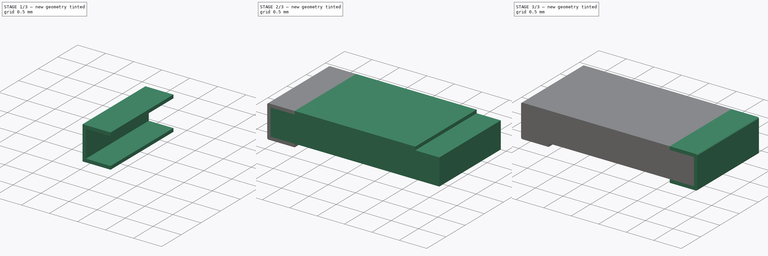
[diagram: build sequence overview — one tinted view per stage of 3, left to right]
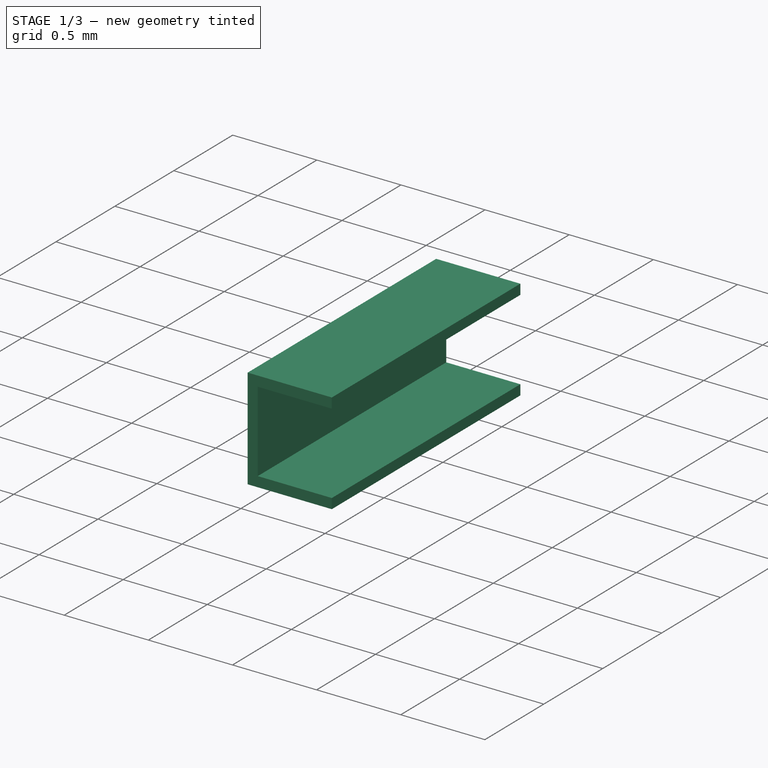
[diagram: stage 1 of 3 — iso view after this stage's code; geometry added in this stage tinted green]
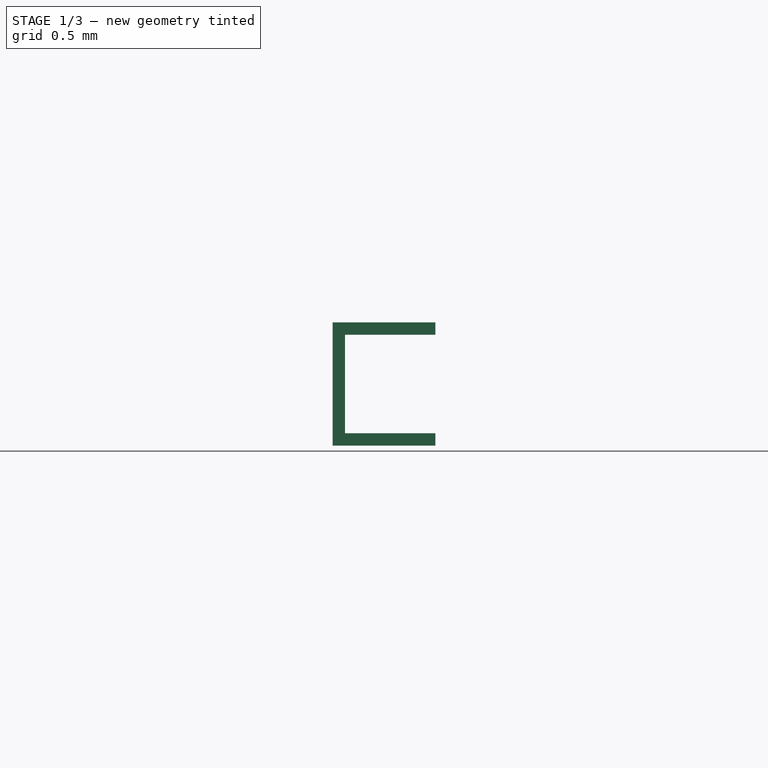
[diagram: stage 1 of 3 — front view after this stage's code; geometry added in this stage tinted green]
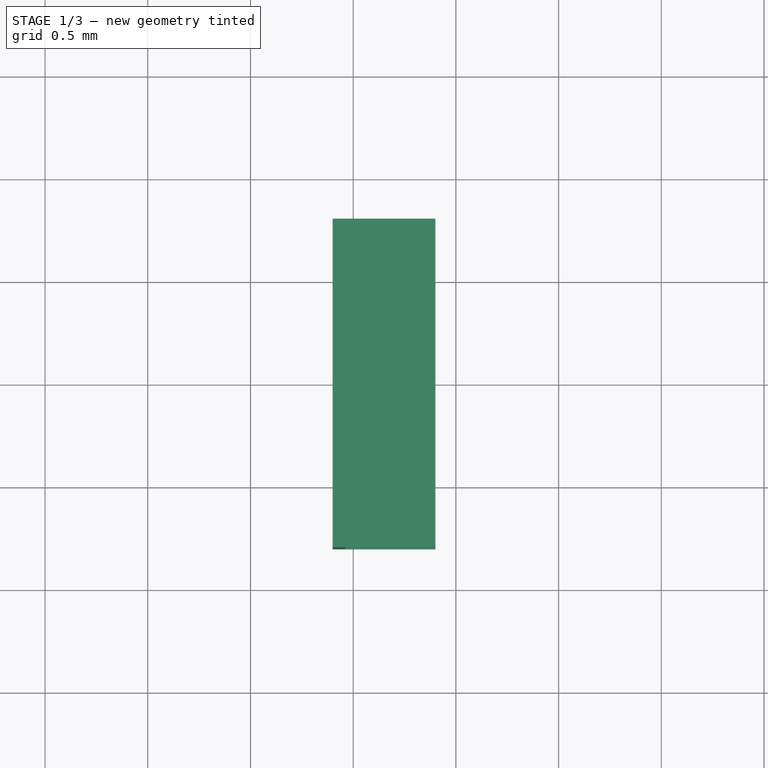
[diagram: stage 1 of 3 — top view after this stage's code; geometry added in this stage tinted green]
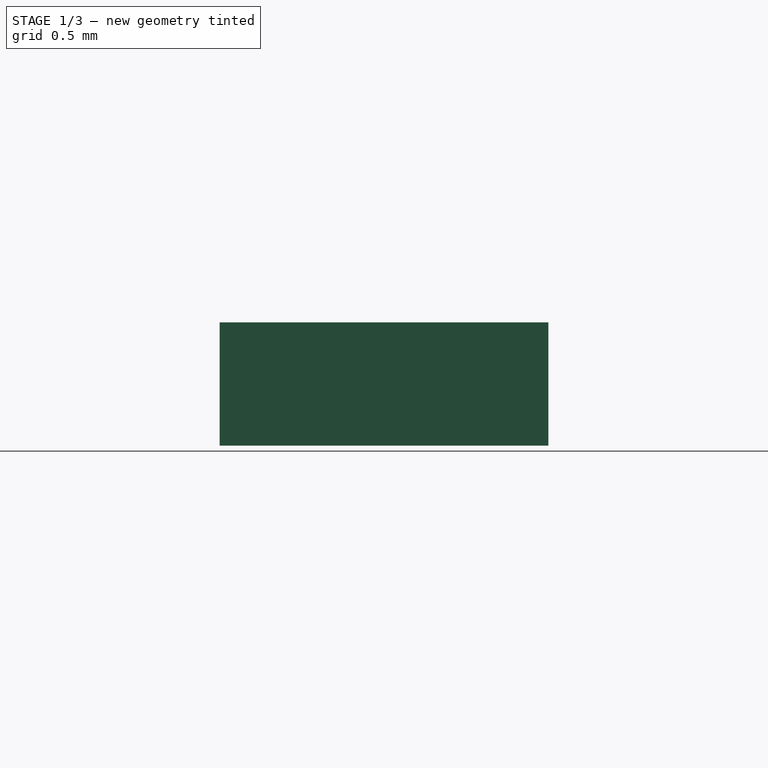
[diagram: stage 1 of 3 — right view after this stage's code; geometry added in this stage tinted green]
FCSTD DOCUMENT  (FreeCAD 0.19R17069 (Git))
Label: Panasonic ERJ
License: All rights reserved
LicenseURL: http://en.wikipedia.org/wiki/All_rights_reserved
objects: PartDesign::Body×5, Sketcher::SketchObject×4, PartDesign::Pad×3, Spreadsheet::Sheet×1, PartDesign::Mirrored×1, PartDesign::Fillet×1, PartDesign::FeatureBase×1, Part::MultiFuse×1
note: 19 computed .brp shape members not serialized (recipe doc carries the construction recipe); baked Part::Feature solids carry a one-line shape summary decoded from their .brp

FEATURE [Sketcher::SketchObject] Sketch
  MapMode = 5
  Placement = pos=(0,0,0) rot=(1,0,0;1.5708rad)
  Support = -> [XZ_Plane]
  expr: Constraints[11] = Datasheet.dim_a
  expr: Constraints[8] = Datasheet.dim_b
  expr: Constraints[5] = Datasheet.dim_t
  expr: Constraints[2] = Datasheet.dim_L / 2
  sketch-geometry (4):
    g0: LineSegment StartX=0 StartY=0 StartZ=0 EndX=-1.6 EndY=0 EndZ=0
    g1: LineSegment StartX=-1.6 StartY=0 StartZ=0 EndX=-1.6 EndY=0.6 EndZ=0
    g2: LineSegment StartX=0 StartY=0 StartZ=0 EndX=-1.1 EndY=0 EndZ=0
    g3: LineSegment StartX=-1.6 StartY=0.6 StartZ=0 EndX=-1.1 EndY=0.6 EndZ=0
  constraints (12):
    c: Coincident(g0,g-1)
    c: Horizontal(g0)
    c: DistanceX(g0,g0) = 1.6
    c: Coincident(g1,g0)
    c: Vertical(g1)
    c: DistanceY(g1,g1) = 0.6
    c: Coincident(g2,g-1)
    c: PointOnObject(g2,g0)
    c: DistanceX(g0,g2) = 0.5
    c: Coincident(g3,g1)
    c: Horizontal(g3)
    c: DistanceX(g3,g3) = 0.5
FEATURE [PartDesign::Body] Body  label="MasterBody"
  Group = -> [Sketch]
  Origin = -> Origin
FEATURE [Spreadsheet::Sheet] Spreadsheet  label="Datasheet"
  cells = A2=dim_L; C2(dim_L)==3.2mm; A3=dim_W; C3(dim_W)==1.6mm; A4=dim_a; C4(dim_a)==0.5mm; A5=dim_b; C5(dim_b)==0.5mm; A6=dim_t; C6(dim_t)==0.6mm; C7==0.6mm; A8=dim_tf; C8(dim_tf)==0.1 * C6; A9=dim_af; C9(dim_af)==0.25 * C4
FEATURE [Sketcher::SketchObject] Sketch001
  MapMode = 5
  Placement = pos=(0,0,0) rot=(1,0,0;1.5708rad)
  Support = -> [XZ_Plane001]
  expr: Constraints[34] = Datasheet.dim_tf
  expr: Constraints[11] = Sketch.Constraints[11]
  expr: Constraints[8] = Sketch.Constraints[8]
  expr: Constraints[5] = Sketch.Constraints[5]
  expr: Constraints[2] = Sketch.Constraints[2]
  sketch-geometry (13):
    g0: LineSegment [constr] StartX=0 StartY=0 StartZ=0 EndX=-1.6 EndY=0 EndZ=0
    g1: LineSegment [constr] StartX=-1.6 StartY=0 StartZ=0 EndX=-1.6 EndY=0.6 EndZ=0
    g2: LineSegment [constr] StartX=0 StartY=0 StartZ=0 EndX=-1.1 EndY=0 EndZ=0
    g3: LineSegment [constr] StartX=-1.6 StartY=0.6 StartZ=0 EndX=-1.1 EndY=0.6 EndZ=0
    g4: LineSegment StartX=-1.1 StartY=0 StartZ=0 EndX=-1.6 EndY=0 EndZ=0
    g5: LineSegment StartX=-1.6 StartY=0 StartZ=0 EndX=-1.6 EndY=0.6 EndZ=0
    g6: LineSegment StartX=-1.6 StartY=0.6 StartZ=0 EndX=-1.1 EndY=0.6 EndZ=0
    g7: LineSegment StartX=-1.1 StartY=0.6 StartZ=0 EndX=-1.1 EndY=0.54 EndZ=0
    g8: LineSegment StartX=-1.1 StartY=0.54 StartZ=0 EndX=-1.54 EndY=0.54 EndZ=0
    g9: LineSegment StartX=-1.54 StartY=0.54 StartZ=0 EndX=-1.54 EndY=0.06 EndZ=0
    g10: LineSegment StartX=-1.54 StartY=0.06 StartZ=0 EndX=-1.1 EndY=0.06 EndZ=0
    g11: LineSegment StartX=-1.1 StartY=0.06 StartZ=0 EndX=-1.1 EndY=0 EndZ=0
    g12: LineSegment [constr] StartX=-1.54 StartY=0.54 StartZ=0 EndX=-1.6 EndY=0.54 EndZ=0
  constraints (35):
    c: Coincident(g0,g-1)
    c: Horizontal(g0)
    c: DistanceX(g0,g0) = 1.6
    c: Coincident(g1,g0)
    c: Vertical(g1)
    c: DistanceY(g1,g1) = 0.6
    c: Coincident(g2,g-1)
    c: PointOnObject(g2,g0)
    c: DistanceX(g0,g2) = 0.5
    c: Coincident(g3,g1)
    c: Horizontal(g3)
    c: DistanceX(g3,g3) = 0.5
    c: Coincident(g4,g2)
    c: Coincident(g4,g0)
    c: Coincident(g5,g4)
    c: Coincident(g5,g1)
    c: Coincident(g6,g5)
    c: Coincident(g6,g3)
    c: Coincident(g7,g6)
    c: Coincident(g8,g7)
    c: Horizontal(g8)
    c: Coincident(g9,g8)
    c: Vertical(g9)
    c: Coincident(g10,g9)
    c: Horizontal(g10)
    c: Coincident(g11,g10)
    c: Coincident(g11,g4)
    c: Vertical(g11)
    c: Vertical(g7)
    c: Equal(g11,g7)
    c: Coincident(g12,g8)
    c: PointOnObject(g12,g5)
    c: Horizontal(g12)
    c: Equal(g12,g7)
    c: DistanceY(g7,g7) = 0.06
FEATURE [PartDesign::Pad] Pad
  Length = 1.6
  Length2 = 100
  Midplane = true
  Placement = pos=(0,0,0) rot=(1,0,0;1.5708rad)
  Profile = -> Sketch001
  Type = 0
  expr: Length = Datasheet.dim_W
FEATURE [PartDesign::Body] Body003  label="Substrate"
  Group = -> [Sketch002,Pad001]
  Origin = -> Origin003
  Tip = -> Pad001
FEATURE [PartDesign::Mirrored] Mirrored
  BaseFeature = -> Pad
  MirrorPlane = -> XZ_Plane001
  Originals = -> [Pad]
  Placement = pos=(0,0,0) rot=(1,0,0;1.5708rad)
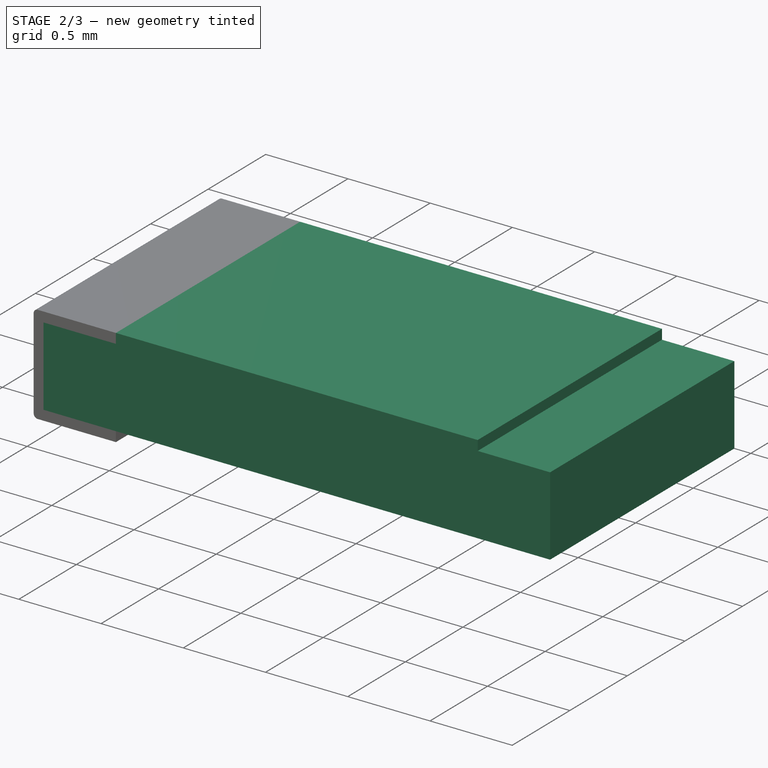
[diagram: stage 2 of 3 — iso view after this stage's code; geometry added in this stage tinted green]
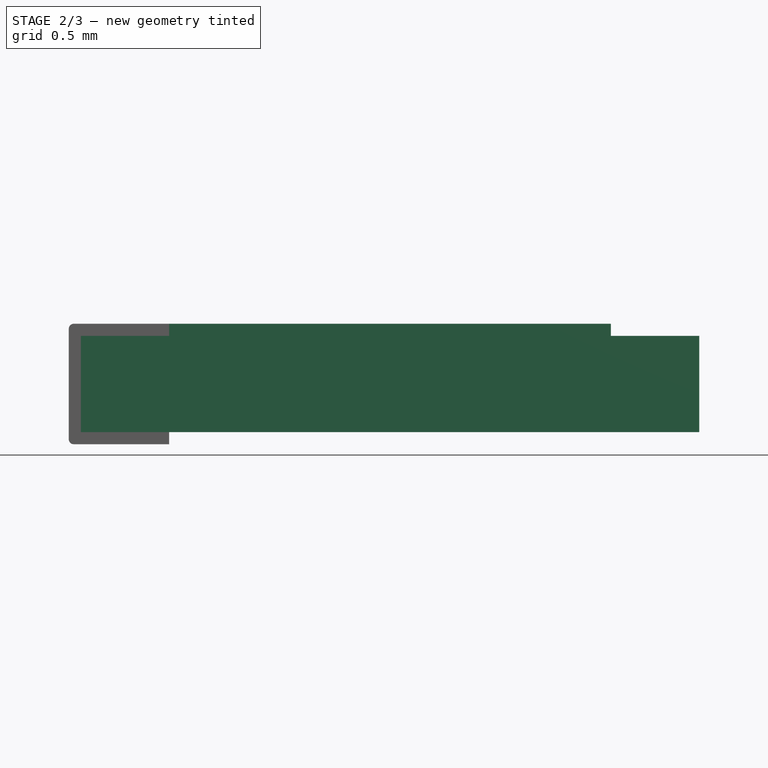
[diagram: stage 2 of 3 — front view after this stage's code; geometry added in this stage tinted green]
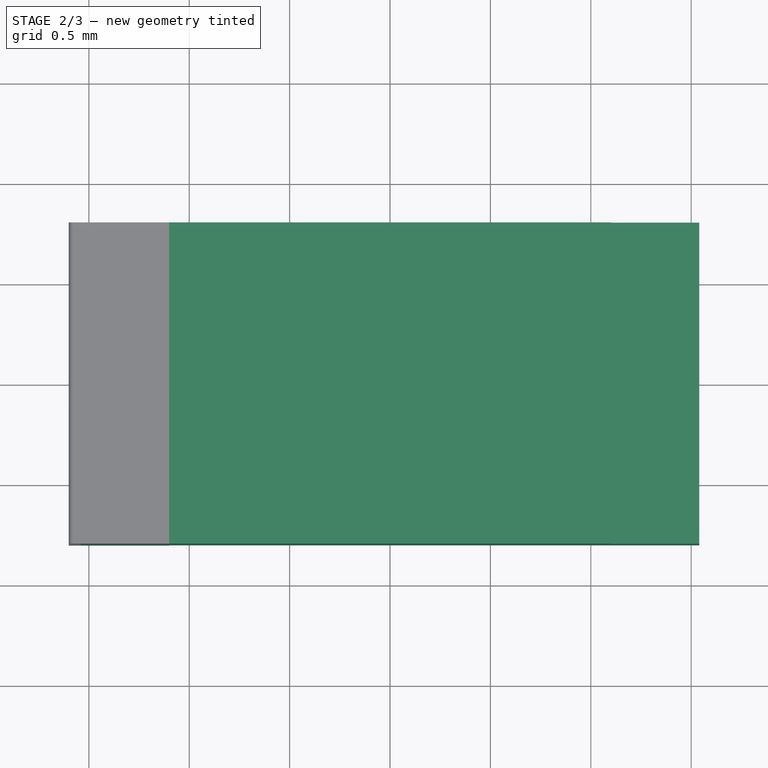
[diagram: stage 2 of 3 — top view after this stage's code; geometry added in this stage tinted green]
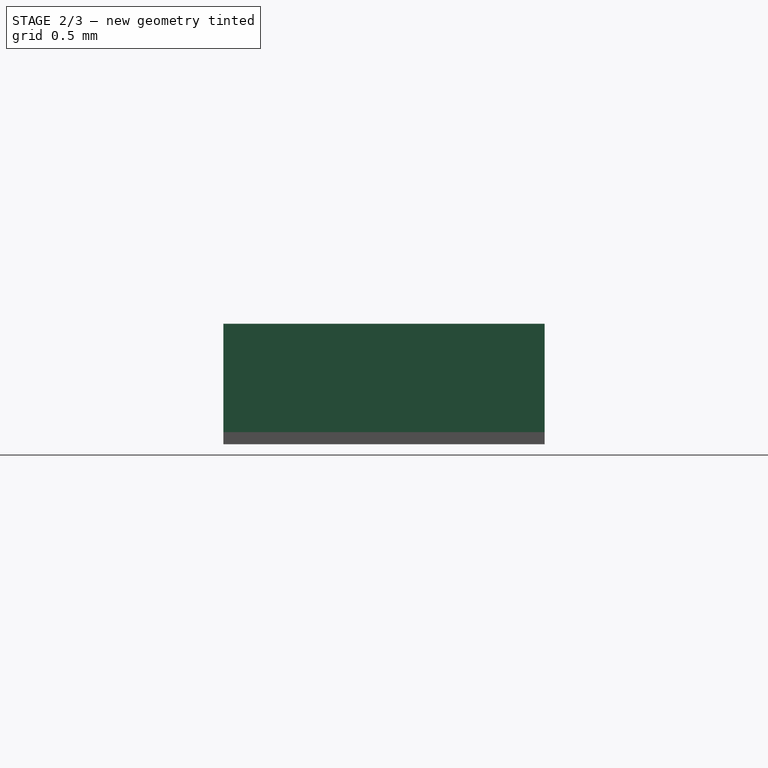
[diagram: stage 2 of 3 — right view after this stage's code; geometry added in this stage tinted green]
FEATURE [Sketcher::SketchObject] Sketch002
  MapMode = 5
  Placement = pos=(0,0,0) rot=(1,0,0;1.5708rad)
  Support = -> [XZ_Plane003]
  expr: Constraints[10] = Datasheet.dim_tf
  expr: Constraints[9] = Datasheet.dim_t - 2 * Datasheet.dim_tf
  expr: Constraints[8] = Datasheet.dim_L - 2 * Datasheet.dim_tf
  sketch-geometry (4):
    g0: LineSegment StartX=-1.54 StartY=0.06 StartZ=0 EndX=1.54 EndY=0.06 EndZ=0
    g1: LineSegment StartX=1.54 StartY=0.06 StartZ=0 EndX=1.54 EndY=0.54 EndZ=0
    g2: LineSegment StartX=1.54 StartY=0.54 StartZ=0 EndX=-1.54 EndY=0.54 EndZ=0
    g3: LineSegment StartX=-1.54 StartY=0.54 StartZ=0 EndX=-1.54 EndY=0.06 EndZ=0
  constraints (11):
    c: Coincident(g0,g1)
    c: Coincident(g1,g2)
    c: Coincident(g2,g3)
    c: Coincident(g3,g0)
    c: Horizontal(g0)
    c: Vertical(g1)
    c: Vertical(g3)
    c: Symmetric(g1,g2,g-2)
    c: DistanceX(g0,g0) = 3.08
    c: DistanceY(g0,g1) = 0.48
    c: DistanceY(g-1,g0) = 0.06
FEATURE [PartDesign::Pad] Pad001
  Length = 1.6
  Length2 = 100
  Midplane = true
  Placement = pos=(0,0,0) rot=(1,0,0;1.5708rad)
  Profile = -> Sketch002
  Type = 0
  expr: Length = Datasheet.dim_W
FEATURE [Sketcher::SketchObject] Sketch003
  AttachmentOffset = pos=(0,0,0.54) rot=(0,0,1;0rad)
  MapMode = 5
  Placement = pos=(0,0,0.54) rot=(0,0,1;0rad)
  Support = -> [XY_Plane004]
  expr: AttachmentOffset.Base.z = Datasheet.dim_t - Datasheet.dim_tf
  expr: Constraints[10] = Datasheet.dim_L - 2 * Datasheet.dim_a
  expr: Constraints[9] = Datasheet.dim_W
  sketch-geometry (4):
    g0: LineSegment StartX=-1.1 StartY=-0.8 StartZ=0 EndX=1.1 EndY=-0.8 EndZ=0
    g1: LineSegment StartX=1.1 StartY=-0.8 StartZ=0 EndX=1.1 EndY=0.8 EndZ=0
    g2: LineSegment StartX=1.1 StartY=0.8 StartZ=0 EndX=-1.1 EndY=0.8 EndZ=0
    g3: LineSegment StartX=-1.1 StartY=0.8 StartZ=0 EndX=-1.1 EndY=-0.8 EndZ=0
  constraints (11):
    c: Coincident(g0,g1)
    c: Coincident(g1,g2)
    c: Coincident(g2,g3)
    c: Coincident(g3,g0)
    c: Horizontal(g0)
    c: Horizontal(g2)
    c: Vertical(g1)
    c: Vertical(g3)
    c: Symmetric(g1,g0,g-1)
    c: DistanceY(g3,g3) = 1.6
    c: DistanceX(g0,g0) = 2.2
FEATURE [PartDesign::Pad] Pad002
  Length = 0.06
  Length2 = 100
  Profile = -> Sketch003
  Type = 0
  expr: Length = Datasheet.dim_tf
FEATURE [PartDesign::Body] Body004  label="MarkingPad"
  Group = -> [Pad002,Sketch003]
  Origin = -> Origin004
  Tip = -> Pad002
FEATURE [PartDesign::Fillet] Fillet
  Base = -> Mirrored [Edge8,Edge2]
  BaseFeature = -> Mirrored
  Placement = pos=(0,0,0) rot=(1,0,0;1.5708rad)
  Radius = 0.025
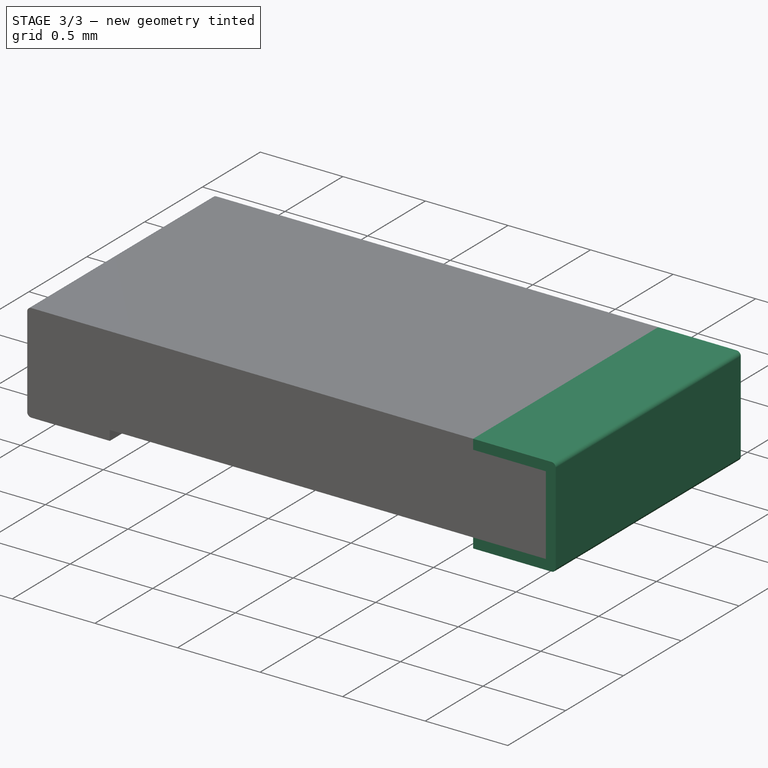
[diagram: stage 3 of 3 — iso view after this stage's code; geometry added in this stage tinted green]
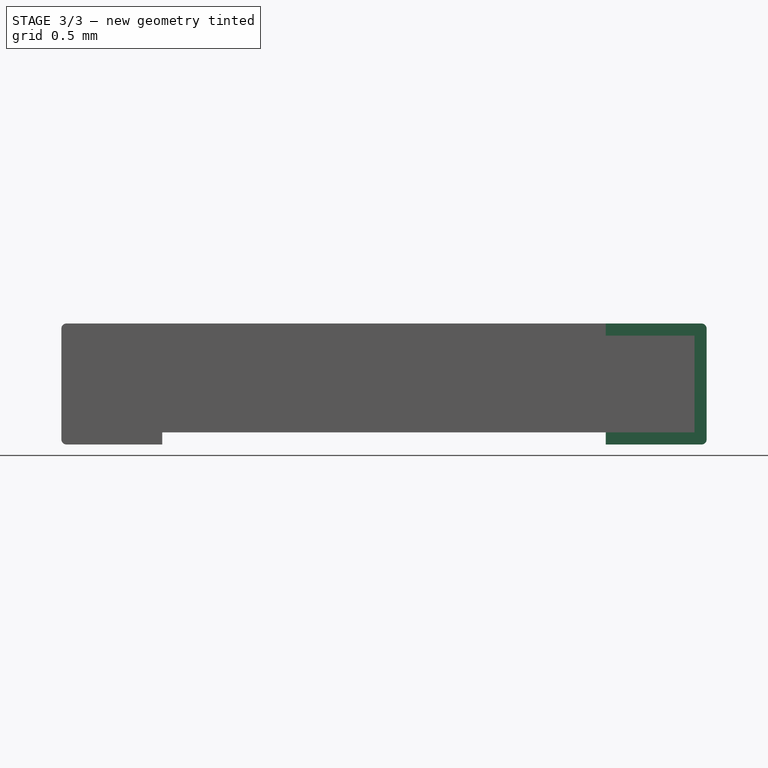
[diagram: stage 3 of 3 — front view after this stage's code; geometry added in this stage tinted green]
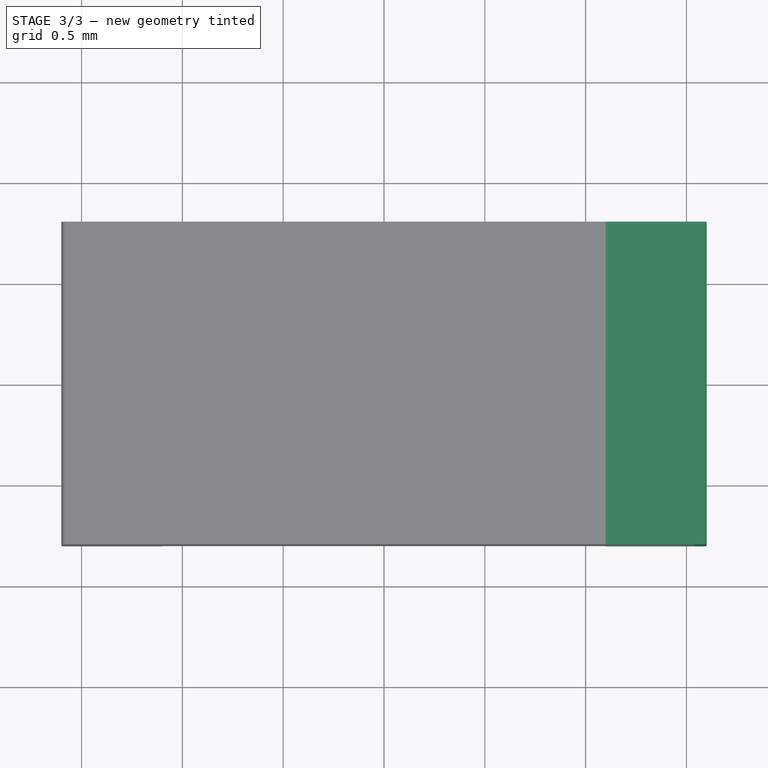
[diagram: stage 3 of 3 — top view after this stage's code; geometry added in this stage tinted green]
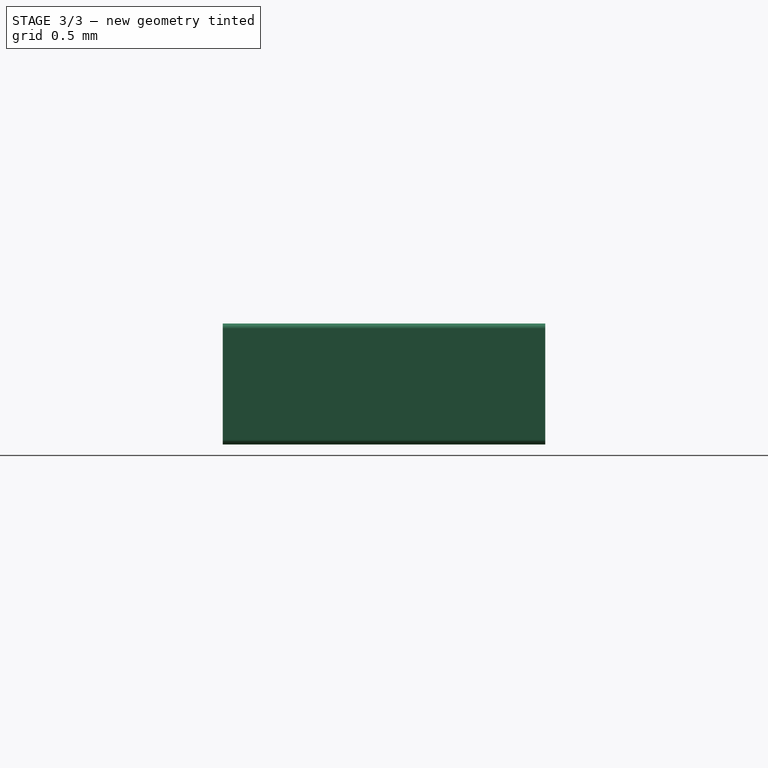
[diagram: stage 3 of 3 — right view after this stage's code; geometry added in this stage tinted green]
FEATURE [PartDesign::Body] Body001  label="Electrode_1"
  Group = -> [Sketch001,Pad,Mirrored,Fillet]
  Origin = -> Origin001
  Tip = -> Fillet
FEATURE [PartDesign::FeatureBase] Clone
  BaseFeature = -> Body001
FEATURE [PartDesign::Body] Body002  label="Electrode_2"
  BaseFeature = -> Body001
  Group = -> [Clone]
  Origin = -> Origin002
  Placement = pos=(0,0,0) rot=(0,0,1;3.14159rad)
  Tip = -> Clone
FEATURE [Part::MultiFuse] Fusion  label="R_1206_3216M"
  Shapes = -> [Body004,Body003,Body001,Body002]
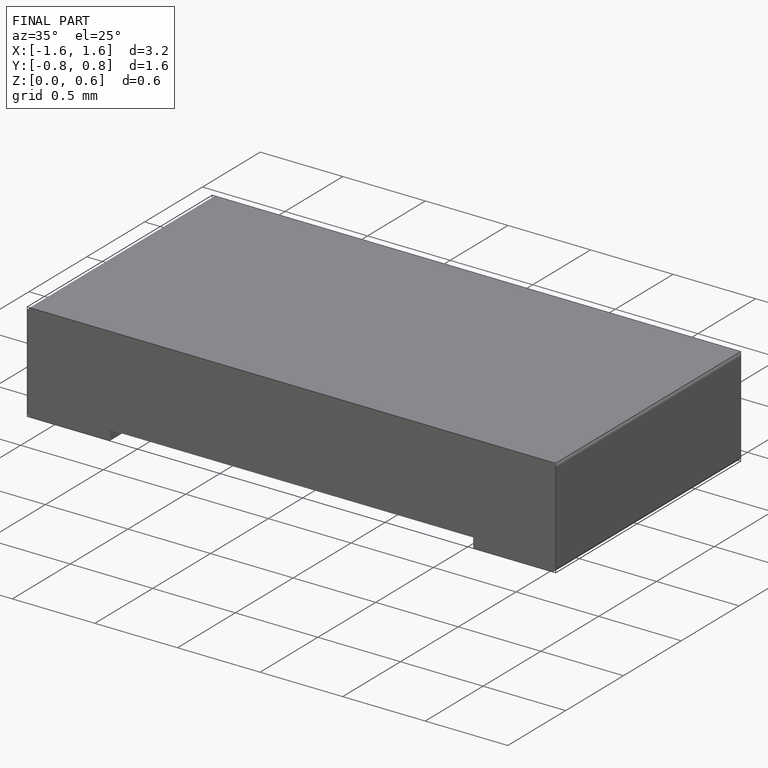
[diagram: finished part — iso view with bounding-box wireframe]
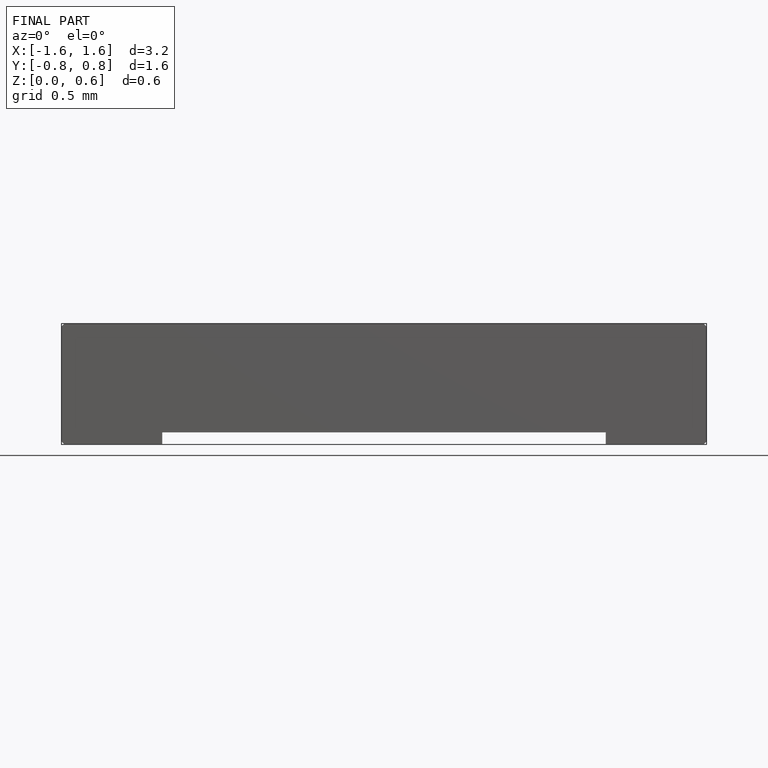
[diagram: finished part — front view with bounding-box wireframe]
